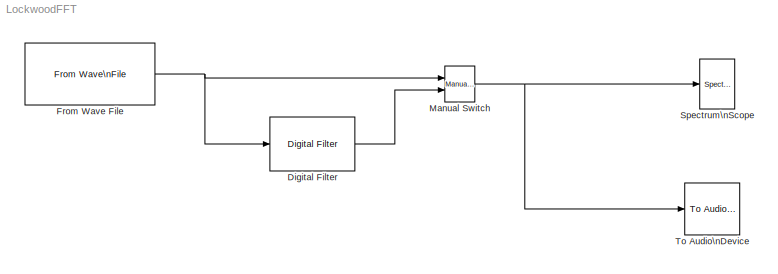
MODEL LockwoodFFT
KIND model
BLOCK [Reference] Digital Filter  REF=dsparch4/Digital Filter
  AllPoleFiltStruct = Direct form
  BiQuadCoeffs = [1 0.3 0.4 1 0.1 0.2]
  CoeffSource = Specify via dialog
  DenCoeffs = Den
  DialogController = dspdialog.DigitalFilter
  DialogControllerArgs = DataTag0
  FIRFiltStruct = Direct form
  FiltPerSampPopup = One filter per frame
  FilterSource = Specify via dialog
  IC = 0
  ICden = 0
  ICnum = 0
  IIRFiltStruct = Direct form II transposed
  LatticeCoeffs = [0.2 0.4]
  LockScale = off
  NumCoeffs = Num
  Ports = [1, 1]
  ScaleValues = 1
  SourceBlock = dsparch4/Digital Filter
  SourceType = Digital Filter
  TypePopup = IIR (poles & zeros)
  accumFracLength = 30
  accumMode = Same as product output
  accumWordLength = 32
  additionalParams = off
  allowOverrides = on
  denIgnore = on
  dfiltObjectName = dfilt.dffir([1 2 1])
  firstCoeffFracLength = 15
  firstCoeffMode = Same word length as input
  firstCoeffWordLength = 16
  memoryFracLength = 15
  memoryMode = Same as accumulator
  memoryWordLength = 16
  multiplicandFracLength = 30
  multiplicandMode = Same as output
  multiplicandWordLength = 32
  outputFracLength = 15
  outputMode = Same as accumulator
  outputWordLength = 16
  overflowMode = off
  prodOutputFracLength = 30
  prodOutputMode = Same as input
  prodOutputWordLength = 32
  roundingMode = Floor
  scaleValueFracLength = 14
  secondCoeffFracLength = 15
  secondCoeffMode = Same as numerator
  secondCoeffWordLength = 16
  showAcc = off
  showCoeff = off
  showMem = off
  showMpy = off
  showOut = off
  stageIOMode = Same as input
  stageIOWordLength = 16
  stageInFracLength = 15
  stageOutFracLength = 15
  tapSumFracLength = 30
  tapSumMode = Same as input
  tapSumWordLength = 32
  thirdCoeffFracLength = 15
  thirdCoeffMode = Same as input
  thirdCoeffWordLength = 16
BLOCK [Reference] From Wave File  REF=dspwin32/From Wave\nFile
  FileName = Lockwood2.wav
  MinBufSize = 256
  Ports = [0, 1]
  SamplesPerFrame = 256
  SourceBlock = dspwin32/From Wave\nFile
  SourceType = From Wave File
  bLoop = off
  dType = double
  firstSampleOutput = off
  lastSampleOutput = off
  restartMode = immediately after last sample
  timesToPlay = 1
BLOCK [Reference] Manual Switch  REF=simulink/Signal\nRouting/Manual Switch
  FunctionWithSeparateData = off
  Ports = [2, 1]
  RTWMemSecDataConstants = Inherit from model
  RTWMemSecDataInternal = Inherit from model
  RTWMemSecDataParameters = Inherit from model
  RTWMemSecFuncExecute = Inherit from model
  RTWMemSecFuncInitTerm = Inherit from model
  ShowPortLabels = FromPortIcon
  SourceBlock = simulink/Signal\nRouting/Manual Switch
  SourceType = Manual Switch
  SystemSampleTime = -1
  action = 0
  sw = 0
  varsize = off
BLOCK [Reference] Spectrum\nScope  REF=dspsnks4/Spectrum\nScope
  AxisGrid = on
  AxisLegend = off
  AxisProperties = off
  AxisZoom = off
  BufferSize = 128
  DialogController = dspdialog.SpectrumScope
  DialogControllerArgs = DataTag1
  DisplayProperties = off
  Domain = Frequency
  FFTlength = 128
  FigPos = get(0,'defaultfigureposition')
  FrameNumber = on
  FunctionWithSeparateData = off
  HorizSpan = 1
  InheritXIncr = on
  LineProperties = off
  Memory = off
  OpenScopeAtSimStart = on
  OpenScopeImmediately = off
  Overlap = 64
  Ports = [1]
  RTWMemSecDataConstants = Inherit from model
  RTWMemSecDataInternal = Inherit from model
  RTWMemSecDataParameters = Inherit from model
  RTWMemSecFuncExecute = Inherit from model
  RTWMemSecFuncInitTerm = Inherit from model
  RsSpecScope = 50
  ScopeProperties = on
  ShowPortLabels = none
  SourceBlock = dspsnks4/Spectrum\nScope
  SourceType = Spectrum Scope
  SystemSampleTime = -1
  UseBuffer = on
  XIncr = 1.0
  XLabel = Samples
  XLimit = Auto
  XMax = 0.3
  XMin = 0
  XRange = [0...Fs/2]
  XUnits = Hertz
  YLabel = Magnitude-squared, dB
  YMax = 10
  YMin = -80
  YUnits = dB
  betaSpecScope = 5
  inpFftLenInherit = off
  numAvg = 2
  winsampSpecScope = Periodic
  wintypeSpecScope = Hann
BLOCK [Reference] To Audio\nDevice  REF=dspsnks4/To Audio\nDevice
  DialogController = dspDDGCreate
  DialogControllerArgs = DataTag2
  Ports = [1]
  SourceBlock = dspsnks4/To Audio\nDevice
  SourceType = To Audio Device
  autoBufferSize = on
  bufferSize = 4096
  deviceDatatype = Determine from input data type
  deviceName = Default
  inheritSampleRate = on
  queueDuration = 1.0
  sampleRate = 44100
LINE Digital Filter:1 -> Manual Switch:2
NET From Wave File:1 -> Digital Filter:1, Manual Switch:1
NET Manual Switch:1 -> Spectrum\nScope:1, To Audio\nDevice:1
note: NET lines group one-source signal fan-out (src -> all destinations, sorted); 1:1 wires keep LINE
